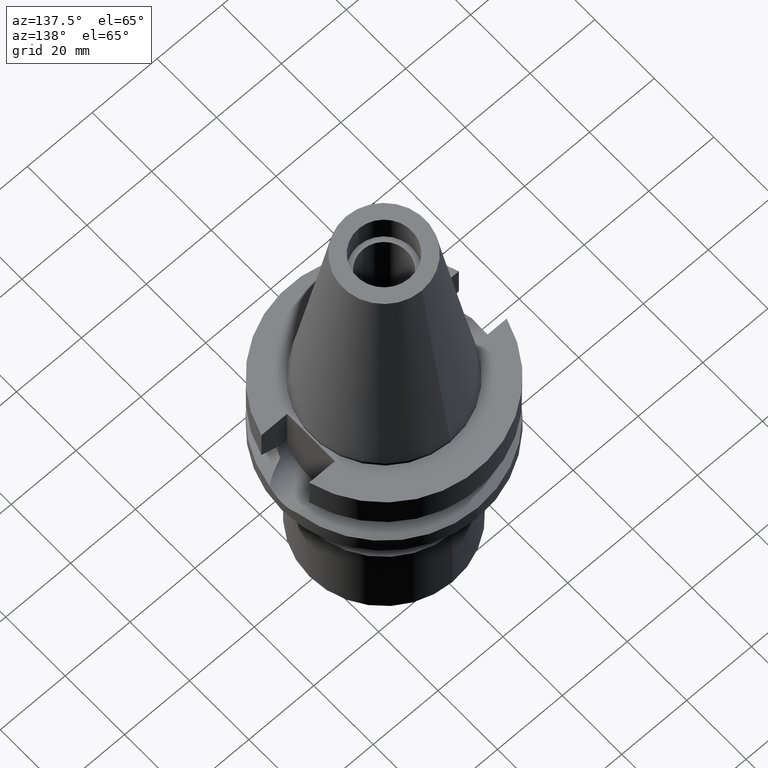
[diagram: clean part render]
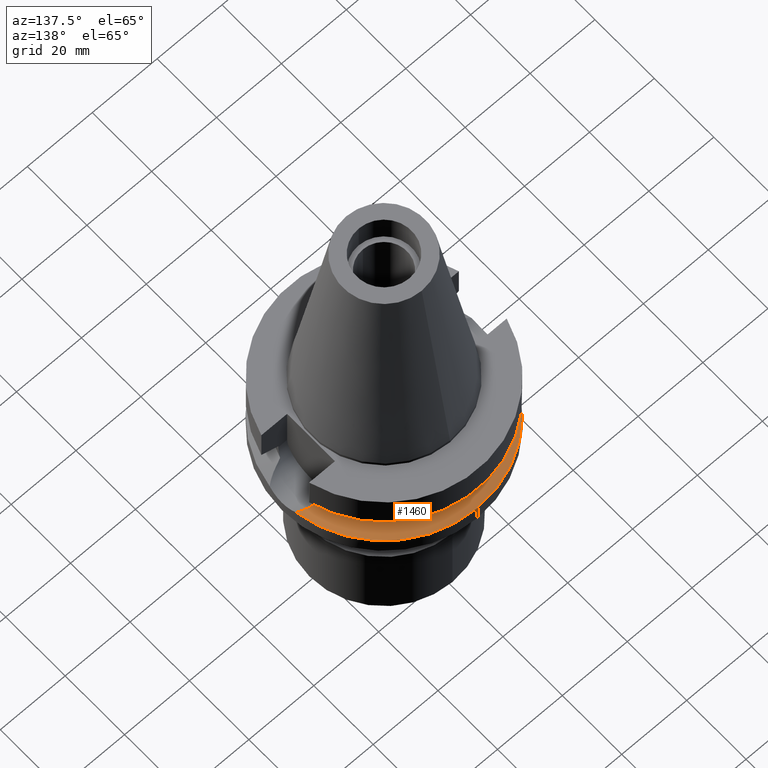
[diagram: same view with one face highlighted and labeled with its STEP entity id]
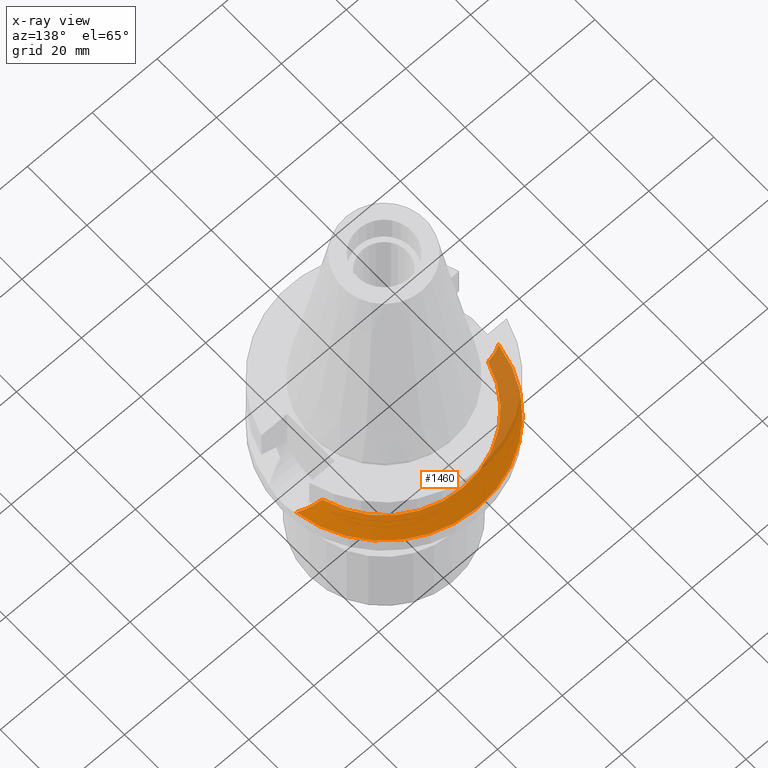
[diagram: x-ray of the same camera — body ghosted, the highlighted face saturated]
A machine part, auxiliary view. The second image highlights one B-rep face of the part: STEP entity #1460.
The next image is the same camera in x-ray: the body ghosted, the highlighted face saturated — about 24% of this face is hidden behind the body in this view.
In plain terms, the highlighted conical surface has half-angle 60 deg.
Its self-contained STEP definition (entity closure, byte-faithful):
#33 = CARTESIAN_POINT ( 'NONE',  ( 27.92028999709265946, 6.324879882284142774, -19.97228346030551549 ) ) ;
#113 = VERTEX_POINT ( 'NONE', #1179 ) ;
#123 = EDGE_CURVE ( 'NONE', #2546, #765, #1501, .T. ) ;
#138 = CARTESIAN_POINT ( 'NONE',  ( 31.17899877608999759, 4.485536235554000051, -21.63449434733000132 ) ) ;
#160 = EDGE_CURVE ( 'NONE', #765, #1832, #1550, .T. ) ;
#179 = CARTESIAN_POINT ( 'NONE',  ( -28.82825199919142278, 5.891281014482074418, -20.43595458910426999 ) ) ;
#229 = DIRECTION ( 'NONE',  ( 0.0000000000000000000, 0.0000000000000000000, -1.000000000000000000 ) ) ;
#231 = CARTESIAN_POINT ( 'NONE',  ( 31.17899877608999759, 4.485536235554000051, -21.63449434733000132 ) ) ;
#253 = CIRCLE ( 'NONE', #739, 26.49999999999998224 ) ;
#381 = CARTESIAN_POINT ( 'NONE',  ( -28.64994307967609544, 5.974988778435919912, -20.34490228502217235 ) ) ;
#395 = CARTESIAN_POINT ( 'NONE',  ( -28.25133510219419719, 6.153028581121071205, -20.14132823897300995 ) ) ;
#441 = EDGE_LOOP ( 'NONE', ( #981, #537, #1141, #2125, #1353 ) ) ;
#476 = CARTESIAN_POINT ( 'NONE',  ( 29.24146349154983682, 5.688420179755111938, -20.64694241441702616 ) ) ;
#537 = ORIENTED_EDGE ( 'NONE', *, *, #1216, .F. ) ;
#567 = B_SPLINE_CURVE_WITH_KNOTS ( 'NONE', 3,
 ( #231, #2794, #1432, #2859, #2127, #1636, #476, #2332, #976, #748, #33, #1677, #962 ),
 .UNSPECIFIED., .F., .F.,
 ( 4, 2, 2, 1, 2, 2, 4 ),
 ( 0.0000000000000000000, 0.2500000000000062728, 0.3750000000000087153, 0.4375000000000097700, 0.4687500000000099365, 0.5000000000000101030, 1.000000000000000000 ),
 .UNSPECIFIED. ) ;
#606 = CARTESIAN_POINT ( 'NONE',  ( -28.73897143572930091, 5.933410669245896329, -20.39036374160497189 ) ) ;
#712 = DIRECTION ( 'NONE',  ( -0.9898094849552905306, 0.1423979757318985240, 0.0000000000000000000 ) ) ;
#739 = AXIS2_PLACEMENT_3D ( 'NONE', #1955, #1528, #1968 ) ;
#748 = CARTESIAN_POINT ( 'NONE',  ( 28.91090597660869932, 5.851802960048926749, -20.47816081763841822 ) ) ;
#765 = VERTEX_POINT ( 'NONE', #3026 ) ;
#845 = CARTESIAN_POINT ( 'NONE',  ( -29.75976029275996382, 5.446137176546742786, -20.91164315040919064 ) ) ;
#887 = EDGE_CURVE ( 'NONE', #1832, #113, #567, .T. ) ;
#927 = DIRECTION ( 'NONE',  ( 0.0000000000000000000, 1.000000000000000000, 0.0000000000000000000 ) ) ;
#962 = CARTESIAN_POINT ( 'NONE',  ( 25.53175183775000079, 7.097862220092999941, -18.74774300138999905 ) ) ;
#976 = CARTESIAN_POINT ( 'NONE',  ( 28.96524583558782950, 5.825454863019252194, -20.50590913223682321 ) ) ;
#981 = ORIENTED_EDGE ( 'NONE', *, *, #1403, .F. ) ;
#1134 = CARTESIAN_POINT ( 'NONE',  ( -27.60243709110004318, 6.420032752898364059, -19.80966271865407435 ) ) ;
#1141 = ORIENTED_EDGE ( 'NONE', *, *, #887, .F. ) ;
#1143 = VERTEX_POINT ( 'NONE', #2207 ) ;
#1149 = CARTESIAN_POINT ( 'NONE',  ( 0.0000000000000000000, 0.0000000000000000000, -21.63449434733000132 ) ) ;
#1171 = AXIS2_PLACEMENT_3D ( 'NONE', #2106, #1840, #1885 ) ;
#1179 = CARTESIAN_POINT ( 'NONE',  ( 25.53175183775000079, 7.097862220092999941, -18.74774300138999905 ) ) ;
#1207 = FACE_OUTER_BOUND ( 'NONE', #441, .T. ) ;
#1216 = EDGE_CURVE ( 'NONE', #113, #1143, #253, .T. ) ;
#1320 = CARTESIAN_POINT ( 'NONE',  ( -28.43862108720161075, 6.071431631962515674, -20.23699006869577133 ) ) ;
#1353 = ORIENTED_EDGE ( 'NONE', *, *, #123, .F. ) ;
#1403 = EDGE_CURVE ( 'NONE', #1143, #2546, #2011, .T. ) ;
#1432 = CARTESIAN_POINT ( 'NONE',  ( 30.50065599110355663, 4.971006141546016721, -21.28916918129043268 ) ) ;
#1460 = ADVANCED_FACE ( 'NONE', ( #1207 ), #2510, .T. ) ;
#1501 = CIRCLE ( 'NONE', #2643, 31.50000000000001421 ) ;
#1528 = DIRECTION ( 'NONE',  ( 0.0000000000000000000, 0.0000000000000000000, 1.000000000000000000 ) ) ;
#1550 = CIRCLE ( 'NONE', #1650, 31.50000000000000000 ) ;
#1636 = CARTESIAN_POINT ( 'NONE',  ( 29.40203501060996771, 5.604714292783638641, -20.72890338333808558 ) ) ;
#1650 = AXIS2_PLACEMENT_3D ( 'NONE', #1658, #229, #927 ) ;
#1658 = CARTESIAN_POINT ( 'NONE',  ( 0.0000000000000000000, 0.0000000000000000000, -21.63449434733000132 ) ) ;
#1677 = CARTESIAN_POINT ( 'NONE',  ( 26.81332912687537018, 6.745578584027821734, -19.40615003689864437 ) ) ;
#1767 = CARTESIAN_POINT ( 'NONE',  ( -26.17338029876361460, 6.921489550906338550, -19.07737797268839230 ) ) ;
#1780 = CARTESIAN_POINT ( 'NONE',  ( -31.17899877608999759, 4.485536235554000051, -21.63449434733000132 ) ) ;
#1832 = VERTEX_POINT ( 'NONE', #138 ) ;
#1840 = DIRECTION ( 'NONE',  ( 0.0000000000000000000, 0.0000000000000000000, -1.000000000000000000 ) ) ;
#1885 = DIRECTION ( 'NONE',  ( 0.0000000000000000000, -1.000000000000000000, 0.0000000000000000000 ) ) ;
#1955 = CARTESIAN_POINT ( 'NONE',  ( 0.0000000000000000000, 0.0000000000000000000, -18.74774300138999905 ) ) ;
#1968 = DIRECTION ( 'NONE',  ( 0.9634623335000935818, 0.2678438573619981722, 0.0000000000000000000 ) ) ;
#2011 = B_SPLINE_CURVE_WITH_KNOTS ( 'NONE', 3,
 ( #2962, #1767, #2310, #1134, #2277, #395, #1320, #381, #606, #2484, #179, #845, #2047, #1780 ),
 .UNSPECIFIED., .F., .F.,
 ( 4, 2, 2, 1, 1, 2, 2, 4 ),
 ( 0.0000000000000000000, 0.2500000000000091038, 0.3750000000000131006, 0.4375000000000153211, 0.4687500000000163758, 0.4843750000000159872, 0.5000000000000155431, 1.000000000000000000 ),
 .UNSPECIFIED. ) ;
#2047 = CARTESIAN_POINT ( 'NONE',  ( -30.53393337704365251, 4.974927128325873582, -21.30609544850640802 ) ) ;
#2060 = CARTESIAN_POINT ( 'NONE',  ( -31.17899877608999759, 4.485536235554000051, -21.63449434733000132 ) ) ;
#2106 = CARTESIAN_POINT ( 'NONE',  ( 0.0000000000000000000, 0.0000000000000000000, -20.19111867435999841 ) ) ;
#2125 = ORIENTED_EDGE ( 'NONE', *, *, #160, .F. ) ;
#2127 = CARTESIAN_POINT ( 'NONE',  ( 29.71710854929838774, 5.435695002503590167, -20.88968907523921459 ) ) ;
#2207 = CARTESIAN_POINT ( 'NONE',  ( -25.53175183775000079, 7.097862220092999941, -18.74774300138999905 ) ) ;
#2277 = CARTESIAN_POINT ( 'NONE',  ( -27.86855933404511987, 6.314559713585496503, -19.94574159089205523 ) ) ;
#2310 = CARTESIAN_POINT ( 'NONE',  ( -26.77125516972780517, 6.727803922392449287, -19.38415420698211022 ) ) ;
#2332 = CARTESIAN_POINT ( 'NONE',  ( 29.07633984791581838, 5.770821603737155137, -20.56263473464893110 ) ) ;
#2484 = CARTESIAN_POINT ( 'NONE',  ( -28.79798184817581586, 5.905639767122235817, -20.42049712109195170 ) ) ;
#2510 = CONICAL_SURFACE ( 'NONE', #1171, 29.00000000000000000, 1.047197551196400456 ) ;
#2546 = VERTEX_POINT ( 'NONE', #2060 ) ;
#2643 = AXIS2_PLACEMENT_3D ( 'NONE', #1149, #2822, #712 ) ;
#2794 = CARTESIAN_POINT ( 'NONE',  ( 30.85601271541506208, 4.730575632826347743, -21.47006409449871711 ) ) ;
#2822 = DIRECTION ( 'NONE',  ( 0.0000000000000000000, 0.0000000000000000000, -1.000000000000000000 ) ) ;
#2859 = CARTESIAN_POINT ( 'NONE',  ( 29.91906490918152528, 5.320872908750365227, -20.99269629230230549 ) ) ;
#2962 = CARTESIAN_POINT ( 'NONE',  ( -25.53175183775000079, 7.097862220092999941, -18.74774300138999905 ) ) ;
#3026 = CARTESIAN_POINT ( 'NONE',  ( 0.0000000000000000000, 31.50000000000000000, -21.63449434733000132 ) ) ;